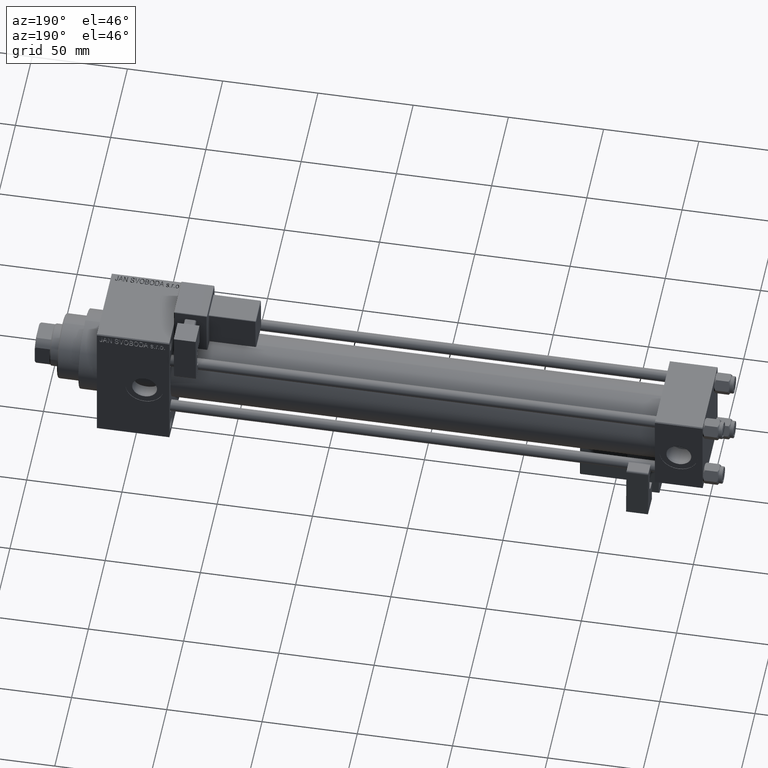
[diagram: clean part render]
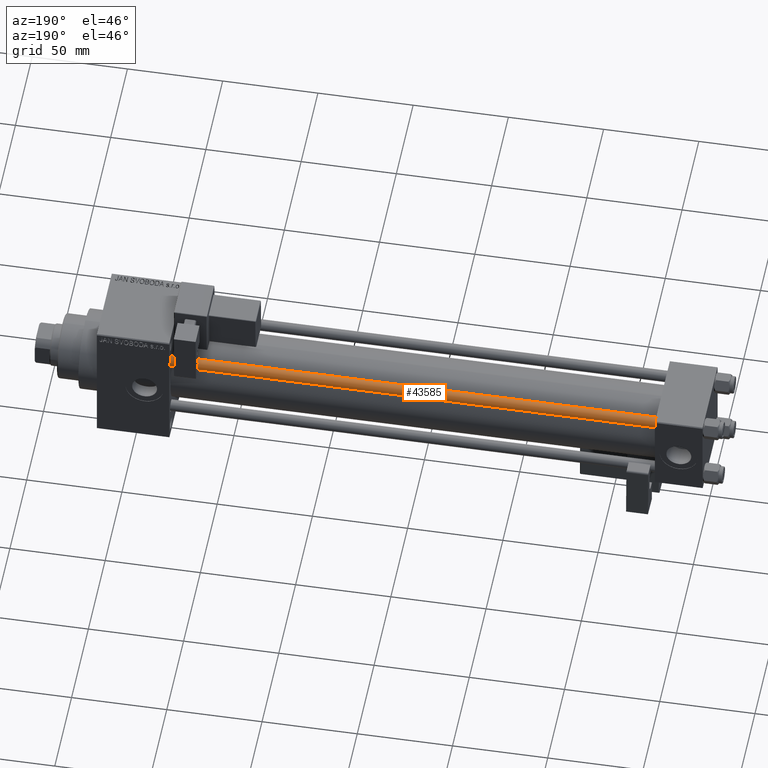
[diagram: same view with one face highlighted and labeled with its STEP entity id]
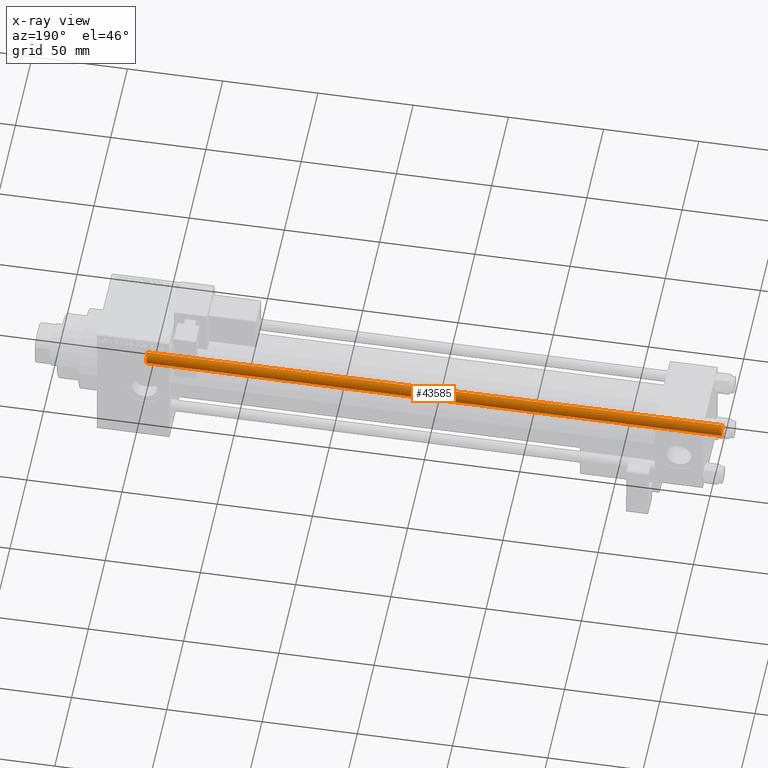
[diagram: x-ray of the same camera — body ghosted, the highlighted face saturated]
A machine part, auxiliary view. The second image highlights one B-rep face of the part: STEP entity #43585.
The next image is the same camera in x-ray: the body ghosted, the highlighted face saturated — about 0% of this face is hidden behind the body in this view.
In plain terms, the highlighted cylindrical surface (edge-blend (fillet) strip) has radius 3 mm, axis along (-1, -0, 0).
Its self-contained STEP definition (entity closure, byte-faithful):
#1104 = DIRECTION ( 'NONE',  ( -1.000000000000000000, 0.000000000000000000, 0.000000000000000000 ) ) ;
#1132 = CARTESIAN_POINT ( 'NONE',  ( 0.000000000000000000, 0.000000000000000000, 0.5000000000001114664 ) ) ;
#1866 = FACE_OUTER_BOUND ( 'NONE', #8287, .T. ) ;
#3749 = EDGE_CURVE ( 'NONE', #18177, #15121, #9639, .T. ) ;
#5746 = CARTESIAN_POINT ( 'NONE',  ( 3.000000000000000444, 3.673940397442060361E-16, 303.0000000000000000 ) ) ;
#8287 = EDGE_LOOP ( 'NONE', ( #35820, #51150, #48300, #15087 ) ) ;
#8753 = EDGE_CURVE ( 'NONE', #15121, #45815, #21082, .T. ) ;
#9163 = DIRECTION ( 'NONE',  ( 0.000000000000000000, 0.000000000000000000, -1.000000000000000000 ) ) ;
#9639 = LINE ( 'NONE', #5746, #35043 ) ;
#13281 = DIRECTION ( 'NONE',  ( -0.000000000000000000, -0.000000000000000000, -1.000000000000000000 ) ) ;
#15087 = ORIENTED_EDGE ( 'NONE', *, *, #18838, .F. ) ;
#15121 = VERTEX_POINT ( 'NONE', #41452 ) ;
#15477 = CIRCLE ( 'NONE', #32918, 3.000000000000000444 ) ;
#16439 = CARTESIAN_POINT ( 'NONE',  ( 0.000000000000000000, 0.000000000000000000, 302.5000000000000000 ) ) ;
#18177 = VERTEX_POINT ( 'NONE', #35883 ) ;
#18838 = EDGE_CURVE ( 'NONE', #44901, #45815, #29179, .T. ) ;
#21082 = CIRCLE ( 'NONE', #40162, 3.000000000000000444 ) ;
#21567 = DIRECTION ( 'NONE',  ( -0.000000000000000000, -0.000000000000000000, -1.000000000000000000 ) ) ;
#22575 = CARTESIAN_POINT ( 'NONE',  ( -3.000000000000000444, 0.000000000000000000, 302.5000000000000000 ) ) ;
#24721 = CYLINDRICAL_SURFACE ( 'NONE', #43138, 3.000000000000000444 ) ;
#25978 = DIRECTION ( 'NONE',  ( 1.000000000000000000, 0.000000000000000000, 0.000000000000000000 ) ) ;
#28497 = CARTESIAN_POINT ( 'NONE',  ( -3.000000000000000444, 0.000000000000000000, 0.5000000000001114664 ) ) ;
#28665 = DIRECTION ( 'NONE',  ( 1.000000000000000000, 0.000000000000000000, 0.000000000000000000 ) ) ;
#29179 = LINE ( 'NONE', #33082, #37975 ) ;
#32560 = DIRECTION ( 'NONE',  ( -0.000000000000000000, -0.000000000000000000, 1.000000000000000000 ) ) ;
#32918 = AXIS2_PLACEMENT_3D ( 'NONE', #16439, #9163, #25978 ) ;
#33082 = CARTESIAN_POINT ( 'NONE',  ( -3.000000000000000444, 0.000000000000000000, 303.0000000000000000 ) ) ;
#33595 = EDGE_CURVE ( 'NONE', #44901, #18177, #15477, .T. ) ;
#35043 = VECTOR ( 'NONE', #21567, 1000.000000000000000 ) ;
#35820 = ORIENTED_EDGE ( 'NONE', *, *, #33595, .T. ) ;
#35883 = CARTESIAN_POINT ( 'NONE',  ( 3.000000000000000444, 3.673940397442060361E-16, 302.5000000000000000 ) ) ;
#37975 = VECTOR ( 'NONE', #44763, 1000.000000000000000 ) ;
#40162 = AXIS2_PLACEMENT_3D ( 'NONE', #1132, #32560, #28665 ) ;
#41452 = CARTESIAN_POINT ( 'NONE',  ( 3.000000000000000444, 3.673940397442060361E-16, 0.5000000000001114664 ) ) ;
#43138 = AXIS2_PLACEMENT_3D ( 'NONE', #44220, #13281, #1104 ) ;
#43585 = ADVANCED_FACE ( 'NONE', ( #1866 ), #24721, .T. ) ;
#44220 = CARTESIAN_POINT ( 'NONE',  ( 0.000000000000000000, 0.000000000000000000, 303.0000000000000000 ) ) ;
#44763 = DIRECTION ( 'NONE',  ( -0.000000000000000000, -0.000000000000000000, -1.000000000000000000 ) ) ;
#44901 = VERTEX_POINT ( 'NONE', #22575 ) ;
#45815 = VERTEX_POINT ( 'NONE', #28497 ) ;
#48300 = ORIENTED_EDGE ( 'NONE', *, *, #8753, .T. ) ;
#51150 = ORIENTED_EDGE ( 'NONE', *, *, #3749, .T. ) ;